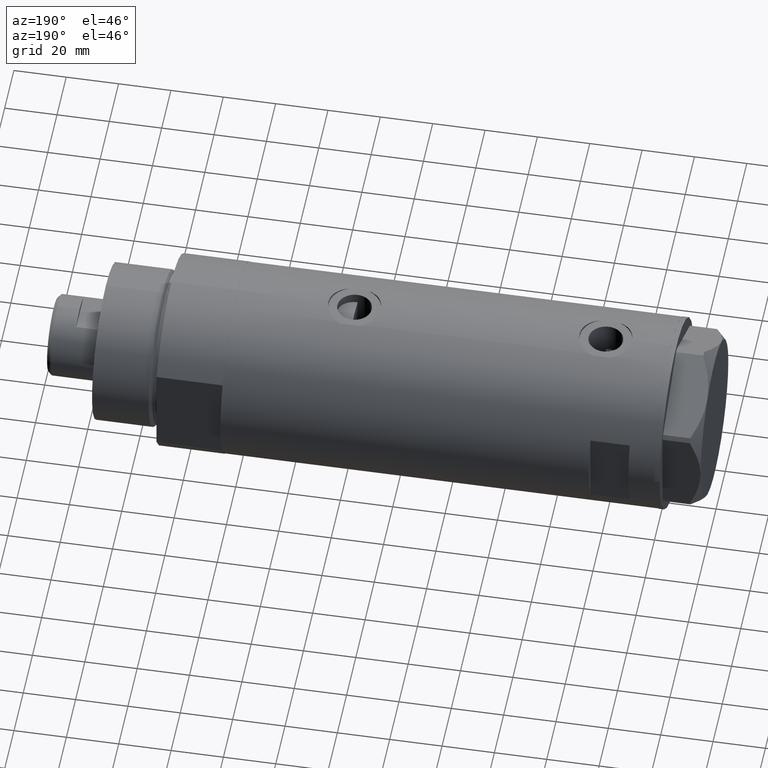
[diagram: clean part render]
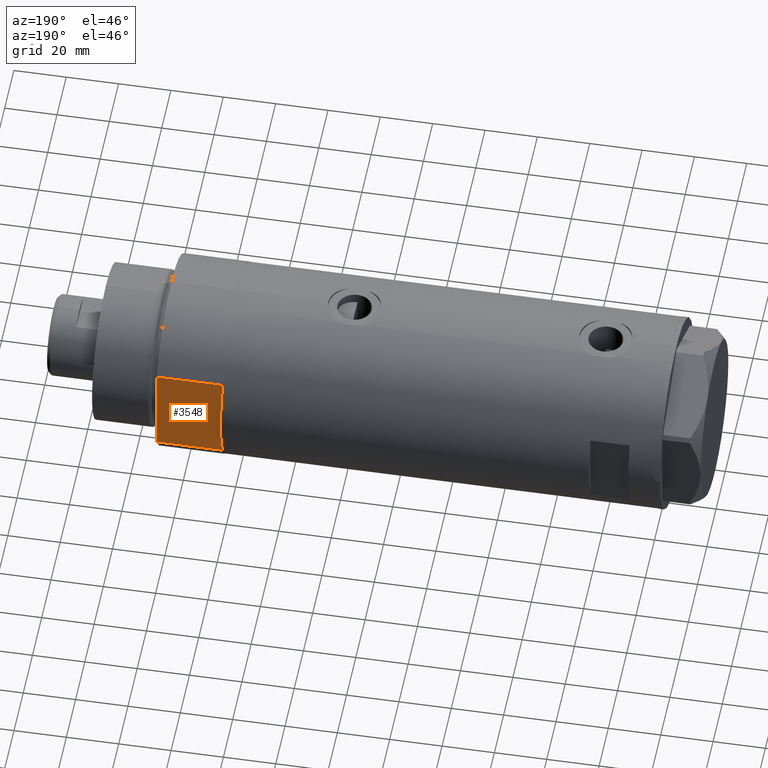
[diagram: same view with one face highlighted and labeled with its STEP entity id]
A machine part, auxiliary view. The second image highlights one B-rep face of the part: STEP entity #3548.
In plain terms, the highlighted planar face has unit normal (0, -1, -0).
Its self-contained STEP definition (entity closure, byte-faithful):
#23 = EDGE_LOOP ( 'NONE', ( #366, #4283, #3255, #1097, #502 ) ) ;
#107 = PLANE ( 'NONE',  #412 ) ;
#109 = DIRECTION ( 'NONE',  ( 1.000000000000000000, 0.000000000000000000, 0.000000000000000000 ) ) ;
#142 = VERTEX_POINT ( 'NONE', #991 ) ;
#194 = VECTOR ( 'NONE', #109, 1000.000000000000000 ) ;
#366 = ORIENTED_EDGE ( 'NONE', *, *, #3387, .T. ) ;
#386 = CARTESIAN_POINT ( 'NONE',  ( -17.55704986607943141, 32.00000000000000000, 0.000000000000000000 ) ) ;
#412 = AXIS2_PLACEMENT_3D ( 'NONE', #386, #1427, #1491 ) ;
#502 = ORIENTED_EDGE ( 'NONE', *, *, #1373, .T. ) ;
#652 = LINE ( 'NONE', #3819, #2768 ) ;
#694 = DIRECTION ( 'NONE',  ( -0.000000000000000000, -0.000000000000000000, 1.000000000000000000 ) ) ;
#805 = LINE ( 'NONE', #1831, #194 ) ;
#818 = VERTEX_POINT ( 'NONE', #3115 ) ;
#991 = CARTESIAN_POINT ( 'NONE',  ( -17.55704986607943141, 32.00000000000000000, 0.000000000000000000 ) ) ;
#1071 = FACE_OUTER_BOUND ( 'NONE', #23, .T. ) ;
#1097 = ORIENTED_EDGE ( 'NONE', *, *, #2548, .F. ) ;
#1215 = CARTESIAN_POINT ( 'NONE',  ( 0.000000000000000000, 32.00000000000000000, 0.000000000000000000 ) ) ;
#1289 = CARTESIAN_POINT ( 'NONE',  ( 17.55704986607943496, 32.00000000000000000, 0.000000000000000000 ) ) ;
#1302 = VERTEX_POINT ( 'NONE', #1289 ) ;
#1373 = EDGE_CURVE ( 'NONE', #142, #818, #3755, .T. ) ;
#1427 = DIRECTION ( 'NONE',  ( 0.000000000000000000, -1.000000000000000000, 0.000000000000000000 ) ) ;
#1434 = EDGE_CURVE ( 'NONE', #1302, #3961, #652, .T. ) ;
#1491 = DIRECTION ( 'NONE',  ( 0.000000000000000000, -0.000000000000000000, -1.000000000000000000 ) ) ;
#1831 = CARTESIAN_POINT ( 'NONE',  ( -17.55704986607943141, 32.00000000000000000, 25.19999999999999929 ) ) ;
#2167 = CARTESIAN_POINT ( 'NONE',  ( -17.55704986607943141, 32.00000000000000000, 0.000000000000000000 ) ) ;
#2548 = EDGE_CURVE ( 'NONE', #142, #4185, #3216, .T. ) ;
#2618 = DIRECTION ( 'NONE',  ( 1.000000000000000000, 0.000000000000000000, 0.000000000000000000 ) ) ;
#2656 = EDGE_CURVE ( 'NONE', #4185, #1302, #4439, .T. ) ;
#2675 = DIRECTION ( 'NONE',  ( -0.000000000000000000, -0.000000000000000000, 1.000000000000000000 ) ) ;
#2768 = VECTOR ( 'NONE', #694, 1000.000000000000000 ) ;
#2914 = DIRECTION ( 'NONE',  ( 1.000000000000000000, 0.000000000000000000, 0.000000000000000000 ) ) ;
#2946 = VECTOR ( 'NONE', #2914, 1000.000000000000000 ) ;
#3115 = CARTESIAN_POINT ( 'NONE',  ( -17.55704986607943496, 32.00000000000000000, 25.19999999999999929 ) ) ;
#3216 = LINE ( 'NONE', #2167, #2946 ) ;
#3255 = ORIENTED_EDGE ( 'NONE', *, *, #2656, .F. ) ;
#3387 = EDGE_CURVE ( 'NONE', #818, #3961, #805, .T. ) ;
#3548 = ADVANCED_FACE ( 'NONE', ( #1071 ), #107, .F. ) ;
#3724 = CARTESIAN_POINT ( 'NONE',  ( -17.55704986607943141, 32.00000000000000000, 0.000000000000000000 ) ) ;
#3755 = LINE ( 'NONE', #3724, #4161 ) ;
#3819 = CARTESIAN_POINT ( 'NONE',  ( 17.55704986607943141, 32.00000000000000000, 0.000000000000000000 ) ) ;
#3926 = CARTESIAN_POINT ( 'NONE',  ( 17.55704986607943496, 32.00000000000000000, 25.19999999999999929 ) ) ;
#3961 = VERTEX_POINT ( 'NONE', #3926 ) ;
#4081 = CARTESIAN_POINT ( 'NONE',  ( -17.55704986607943141, 32.00000000000000000, 0.000000000000000000 ) ) ;
#4161 = VECTOR ( 'NONE', #2675, 1000.000000000000000 ) ;
#4185 = VERTEX_POINT ( 'NONE', #1215 ) ;
#4261 = VECTOR ( 'NONE', #2618, 1000.000000000000000 ) ;
#4283 = ORIENTED_EDGE ( 'NONE', *, *, #1434, .F. ) ;
#4439 = LINE ( 'NONE', #4081, #4261 ) ;